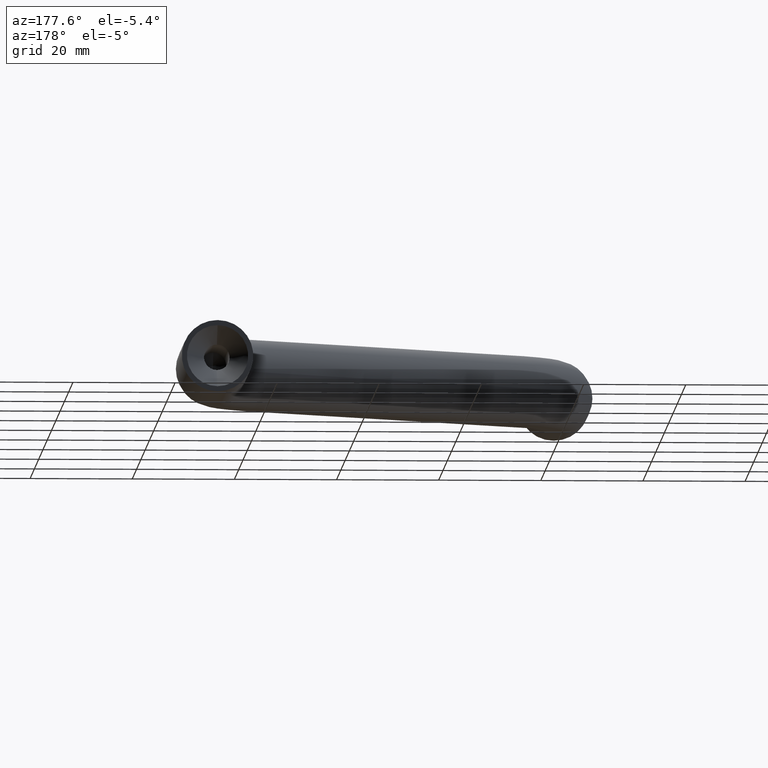
[diagram: clean part render]
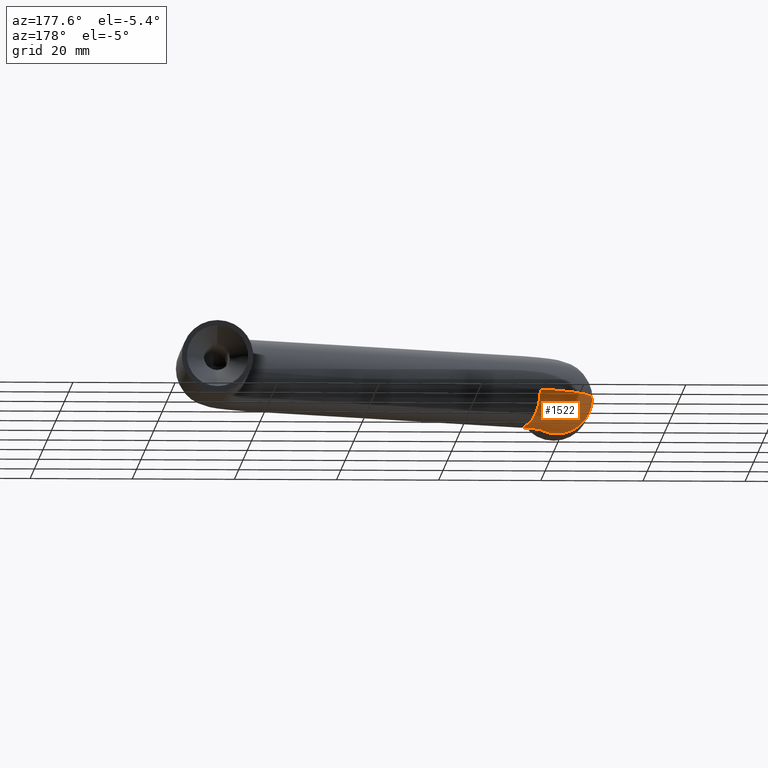
[diagram: same view with one face highlighted and labeled with its STEP entity id]
A machine part, auxiliary view. The second image highlights one B-rep face of the part: STEP entity #1522.
In plain terms, the highlighted toroidal blend (fillet) surface has major radius 15 mm and minor (blend) radius 7 mm.
Its self-contained STEP definition (entity closure, byte-faithful):
#362 = CARTESIAN_POINT ( 'NONE',  ( 7.500000000000030200, 27.25535413780419300, 0.0000000000000000000 ) ) ;
#1087 = ORIENTED_EDGE ( 'NONE', *, *, #8273, .T. ) ;
#1302 = DIRECTION ( 'NONE',  ( 0.0000000000000000000, 0.0000000000000000000, 1.000000000000000000 ) ) ;
#1353 = EDGE_CURVE ( 'NONE', #3171, #7714, #15193, .T. ) ;
#1401 = EDGE_LOOP ( 'NONE', ( #1087, #7066, #2250, #9255, #14725 ) ) ;
#1522 = ADVANCED_FACE ( 'NONE', ( #8447 ), #11904, .T. ) ;
#1853 = DIRECTION ( 'NONE',  ( -0.0000000000000000000, -0.0000000000000000000, -1.000000000000000000 ) ) ;
#1935 = DIRECTION ( 'NONE',  ( 0.0000000000000000000, 0.0000000000000000000, 1.000000000000000000 ) ) ;
#2249 = CIRCLE ( 'NONE', #7204, 7.000000000000000000 ) ;
#2250 = ORIENTED_EDGE ( 'NONE', *, *, #4976, .F. ) ;
#2265 = DIRECTION ( 'NONE',  ( -1.000000000000000000, 0.0000000000000000000, 0.0000000000000000000 ) ) ;
#2385 = EDGE_CURVE ( 'NONE', #13337, #2406, #8158, .T. ) ;
#2406 = VERTEX_POINT ( 'NONE', #10739 ) ;
#2547 = AXIS2_PLACEMENT_3D ( 'NONE', #5595, #5702, #14188 ) ;
#3171 = VERTEX_POINT ( 'NONE', #12575 ) ;
#3327 = VERTEX_POINT ( 'NONE', #6970 ) ;
#4153 = CARTESIAN_POINT ( 'NONE',  ( 0.0000000000000000000, 14.26497308103759900, -7.000000000000000000 ) ) ;
#4920 = CARTESIAN_POINT ( 'NONE',  ( 15.00000000000000000, 14.26497308103759900, 0.0000000000000000000 ) ) ;
#4976 = EDGE_CURVE ( 'NONE', #3327, #2406, #10068, .T. ) ;
#5595 = CARTESIAN_POINT ( 'NONE',  ( 15.00000000000000000, 14.26497308103759900, 8.572527594031473200E-016 ) ) ;
#5616 = AXIS2_PLACEMENT_3D ( 'NONE', #11637, #14207, #1935 ) ;
#5702 = DIRECTION ( 'NONE',  ( -0.0000000000000000000, -0.0000000000000000000, -1.000000000000000000 ) ) ;
#5889 = CIRCLE ( 'NONE', #2547, 8.000000000000000000 ) ;
#6246 = AXIS2_PLACEMENT_3D ( 'NONE', #4920, #7219, #2265 ) ;
#6533 = DIRECTION ( 'NONE',  ( 0.0000000000000000000, 0.0000000000000000000, 1.000000000000000000 ) ) ;
#6664 = DIRECTION ( 'NONE',  ( -1.000000000000000000, 0.0000000000000000000, 0.0000000000000000000 ) ) ;
#6724 = EDGE_CURVE ( 'NONE', #3171, #3327, #5889, .T. ) ;
#6864 = AXIS2_PLACEMENT_3D ( 'NONE', #362, #13879, #6533 ) ;
#6970 = CARTESIAN_POINT ( 'NONE',  ( 11.00000000000001600, 21.19317631131311700, 8.572527594031473200E-016 ) ) ;
#7066 = ORIENTED_EDGE ( 'NONE', *, *, #2385, .T. ) ;
#7204 = AXIS2_PLACEMENT_3D ( 'NONE', #8684, #7553, #1302 ) ;
#7219 = DIRECTION ( 'NONE',  ( -0.0000000000000000000, -0.0000000000000000000, -1.000000000000000000 ) ) ;
#7553 = DIRECTION ( 'NONE',  ( 0.0000000000000000000, 1.000000000000000000, 0.0000000000000000000 ) ) ;
#7714 = VERTEX_POINT ( 'NONE', #4153 ) ;
#7780 = CARTESIAN_POINT ( 'NONE',  ( -6.999999999999999100, 14.26497308103759900, 0.0000000000000000000 ) ) ;
#8158 = CIRCLE ( 'NONE', #9101, 22.00000000000000000 ) ;
#8273 = EDGE_CURVE ( 'NONE', #7714, #13337, #2249, .T. ) ;
#8447 = FACE_OUTER_BOUND ( 'NONE', #1401, .T. ) ;
#8684 = CARTESIAN_POINT ( 'NONE',  ( 0.0000000000000000000, 14.26497308103759900, 0.0000000000000000000 ) ) ;
#9101 = AXIS2_PLACEMENT_3D ( 'NONE', #13965, #1853, #6664 ) ;
#9255 = ORIENTED_EDGE ( 'NONE', *, *, #6724, .F. ) ;
#10068 = CIRCLE ( 'NONE', #6864, 7.000000000000000000 ) ;
#10739 = CARTESIAN_POINT ( 'NONE',  ( 4.000000000000043500, 33.31753196429527000, 0.0000000000000000000 ) ) ;
#11637 = CARTESIAN_POINT ( 'NONE',  ( 0.0000000000000000000, 14.26497308103759900, 0.0000000000000000000 ) ) ;
#11904 = TOROIDAL_SURFACE ( 'NONE', #6246, 15.00000000000000000, 7.000000000000000000 ) ;
#12575 = CARTESIAN_POINT ( 'NONE',  ( 7.000000000000000900, 14.26497308103759900, 8.572527594031474200E-016 ) ) ;
#13337 = VERTEX_POINT ( 'NONE', #7780 ) ;
#13879 = DIRECTION ( 'NONE',  ( 0.8660254037844398200, 0.4999999999999980000, 0.0000000000000000000 ) ) ;
#13965 = CARTESIAN_POINT ( 'NONE',  ( 15.00000000000000000, 14.26497308103759900, 0.0000000000000000000 ) ) ;
#14188 = DIRECTION ( 'NONE',  ( -1.000000000000000000, 0.0000000000000000000, 0.0000000000000000000 ) ) ;
#14207 = DIRECTION ( 'NONE',  ( 0.0000000000000000000, 1.000000000000000000, 0.0000000000000000000 ) ) ;
#14725 = ORIENTED_EDGE ( 'NONE', *, *, #1353, .T. ) ;
#15193 = CIRCLE ( 'NONE', #5616, 7.000000000000000000 ) ;